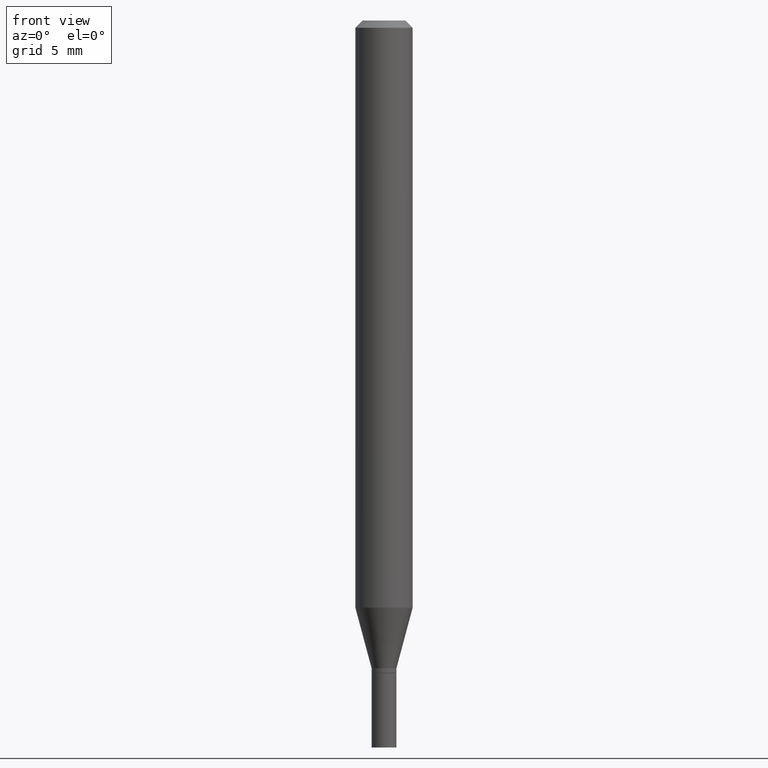
[diagram: clean part render]
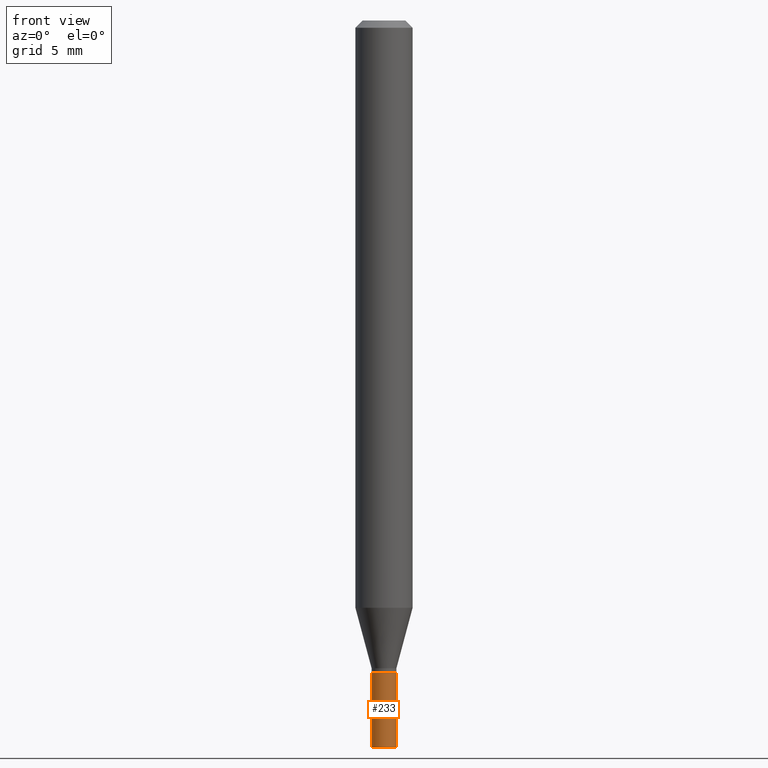
[diagram: same view with one face highlighted and labeled with its STEP entity id]
A machine part, front view. The second image highlights one B-rep face of the part: STEP entity #233.
In plain terms, the highlighted cylindrical surface (edge-blend (fillet) strip) has radius 0.6502 mm, axis along (-0, 0, 1).
Its self-contained STEP definition (entity closure, byte-faithful):
#13 = DIRECTION ( 'NONE',  ( -2.445468806185136877E-29, 3.491481338843145188E-15, 1.000000000000000000 ) ) ;
#17 = AXIS2_PLACEMENT_3D ( 'NONE', #168, #306, #445 ) ;
#21 = CYLINDRICAL_SURFACE ( 'NONE', #17, 0.02560000000000000470 ) ;
#39 = DIRECTION ( 'NONE',  ( 1.000000000000000000, -6.982962677686263555E-15, 0.000000000000000000 ) ) ;
#46 = CARTESIAN_POINT ( 'NONE',  ( 3.668203209277704895E-29, -5.237222008264718177E-15, -1.500000000000000222 ) ) ;
#67 = CARTESIAN_POINT ( 'NONE',  ( -0.02560000000000000470, -4.787351875153921393E-15, -1.500000000000000222 ) ) ;
#80 = CARTESIAN_POINT ( 'NONE',  ( 0.02560000000000000470, -5.415985852813487242E-15, -1.500000000000000222 ) ) ;
#93 = DIRECTION ( 'NONE',  ( 1.000000000000000000, -6.982962677686263555E-15, 0.000000000000000000 ) ) ;
#96 = CIRCLE ( 'NONE', #195, 0.02560000000000000470 ) ;
#101 = AXIS2_PLACEMENT_3D ( 'NONE', #267, #413, #93 ) ;
#106 = EDGE_CURVE ( 'NONE', #264, #145, #239, .T. ) ;
#112 = ORIENTED_EDGE ( 'NONE', *, *, #106, .F. ) ;
#145 = VERTEX_POINT ( 'NONE', #407 ) ;
#159 = EDGE_LOOP ( 'NONE', ( #427, #386, #383, #112 ) ) ;
#168 = CARTESIAN_POINT ( 'NONE',  ( 0.000000000000000000, 0.000000000000000000, 0.000000000000000000 ) ) ;
#174 = EDGE_CURVE ( 'NONE', #394, #264, #372, .T. ) ;
#195 = AXIS2_PLACEMENT_3D ( 'NONE', #46, #332, #39 ) ;
#200 = VECTOR ( 'NONE', #387, 39.37007874015748143 ) ;
#209 = CARTESIAN_POINT ( 'NONE',  ( -0.02560000000000000470, -4.787351875153921393E-15, -1.346500000000000252 ) ) ;
#233 = ADVANCED_FACE ( 'NONE', ( #347 ), #21, .T. ) ;
#239 = CIRCLE ( 'NONE', #101, 0.02560000000000000470 ) ;
#264 = VERTEX_POINT ( 'NONE', #209 ) ;
#267 = CARTESIAN_POINT ( 'NONE',  ( 3.292823747528287150E-29, -4.701279622752296071E-15, -1.346500000000000252 ) ) ;
#274 = EDGE_CURVE ( 'NONE', #451, #145, #310, .T. ) ;
#306 = DIRECTION ( 'NONE',  ( -2.445468806185136597E-29, 3.491481338843145583E-15, 1.000000000000000000 ) ) ;
#310 = LINE ( 'NONE', #313, #200 ) ;
#313 = CARTESIAN_POINT ( 'NONE',  ( 0.02560000000000000470, -1.787638445487684735E-16, 1.248301254603759692E-30 ) ) ;
#332 = DIRECTION ( 'NONE',  ( -2.445468806185136597E-29, 3.491481338843145583E-15, 1.000000000000000000 ) ) ;
#347 = FACE_OUTER_BOUND ( 'NONE', #159, .T. ) ;
#372 = LINE ( 'NONE', #374, #376 ) ;
#374 = CARTESIAN_POINT ( 'NONE',  ( -0.02560000000000000470, 1.818989403545856810E-16, -1.259247383105256139E-30 ) ) ;
#376 = VECTOR ( 'NONE', #13, 39.37007874015748143 ) ;
#383 = ORIENTED_EDGE ( 'NONE', *, *, #274, .T. ) ;
#386 = ORIENTED_EDGE ( 'NONE', *, *, #448, .T. ) ;
#387 = DIRECTION ( 'NONE',  ( -2.445468806185136877E-29, 3.491481338843145188E-15, 1.000000000000000000 ) ) ;
#394 = VERTEX_POINT ( 'NONE', #67 ) ;
#407 = CARTESIAN_POINT ( 'NONE',  ( 0.02560000000000000470, -4.880043467301064347E-15, -1.346500000000000252 ) ) ;
#413 = DIRECTION ( 'NONE',  ( -2.445468806185136597E-29, 3.491481338843145583E-15, 1.000000000000000000 ) ) ;
#427 = ORIENTED_EDGE ( 'NONE', *, *, #174, .F. ) ;
#445 = DIRECTION ( 'NONE',  ( 1.000000000000000000, -6.982962677686267499E-15, 4.876176775795935232E-29 ) ) ;
#448 = EDGE_CURVE ( 'NONE', #394, #451, #96, .T. ) ;
#451 = VERTEX_POINT ( 'NONE', #80 ) ;